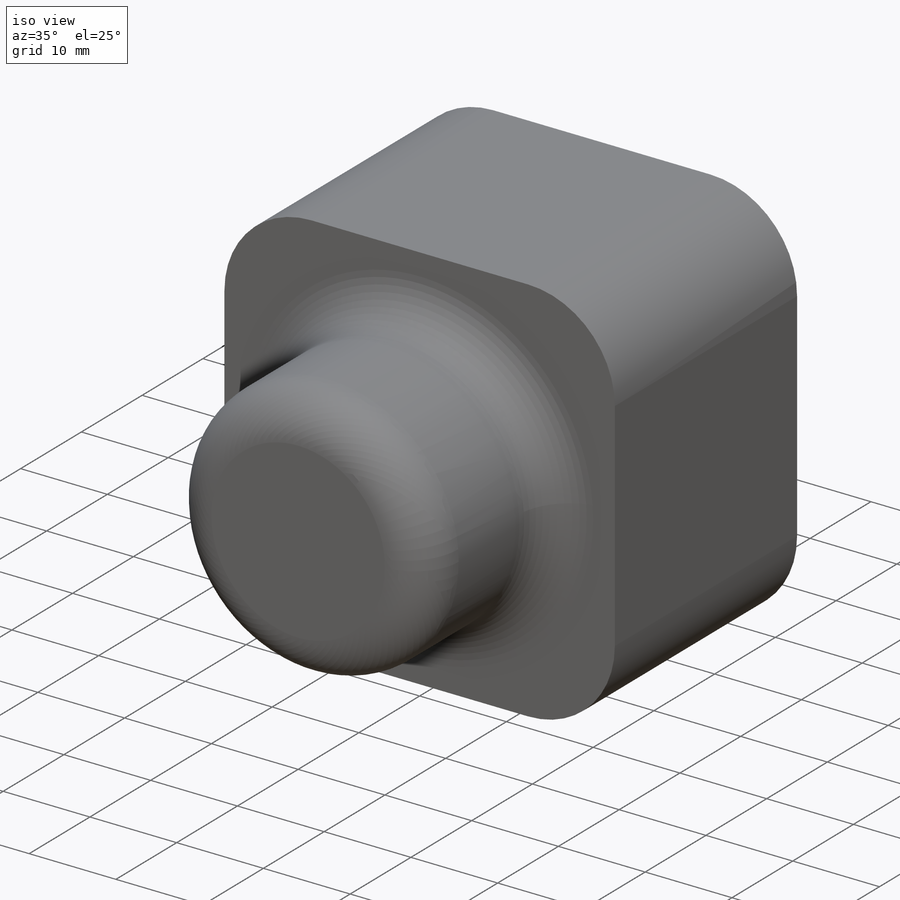
[diagram: iso view]
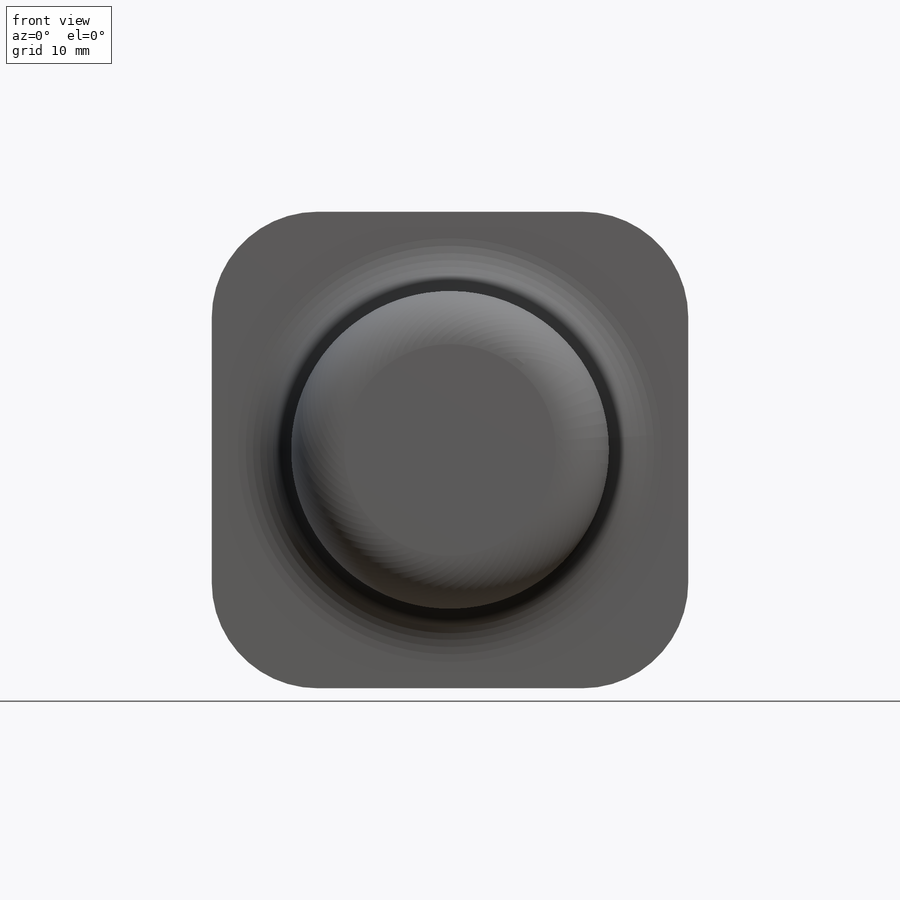
[diagram: front view]
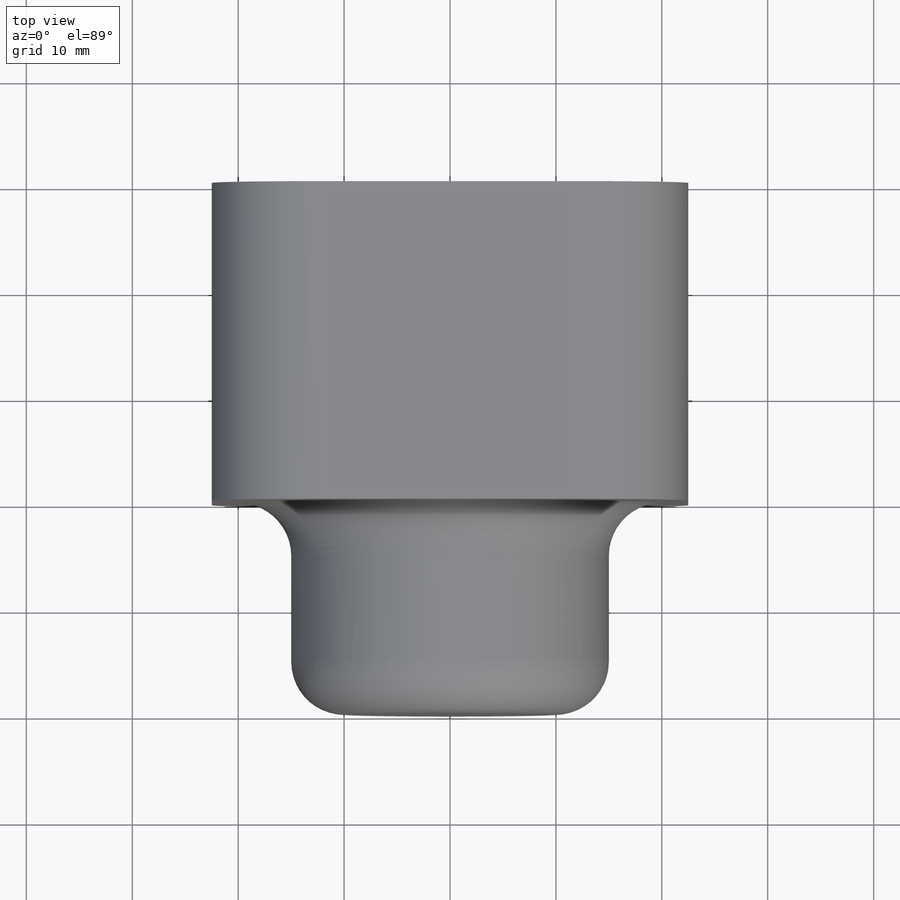
[diagram: top view]
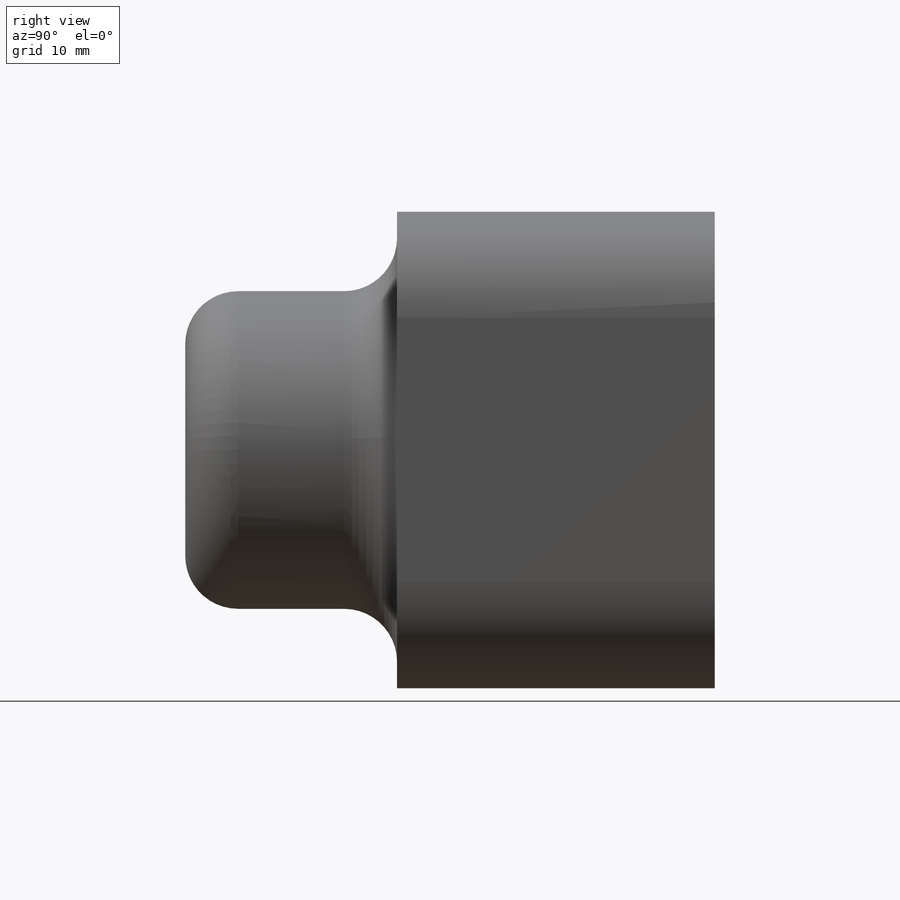
[diagram: right view]
SOLIDWORKS PART (.sldprt)
format: sldprt  version: not decoded by parser v0  size: 321,024 bytes
history: native  units: mm
features: plane x3, sketch x2, extrude x2, fillet x2, material x1, shell x1 + 1 further entry (+10 scaffold rows collapsed)
feature tree (22):
  scaffold x10  (default folders/planes/origin — collapsed)
  material  "Material <nicht festgelegt>"
  plane  "Vorderansicht"
  plane  "Draufsicht"
  plane  "Seitenansicht"
  "Tabelle"
  sketch  "Skizze1"  dims[Breite=45.0mm Höhe=45.0mm]
  extrude  "Grundkörper"  Depth=30mm Tiefe=30mm
  fillet  "VerrundungGrundkörper"  Radius=10mm
  sketch  "Skizze2"  dims[DurchmesserAufsatz=30.0mm]
  extrude  "RunderAufsatz"  Depth=20mm TiefeAufsatz=20mm
  fillet  "VerrundungAufsatz"  Radius=5mm
  shell  "Wandung"  Thickness=1mm Stärke=1mm
decode coverage: 7 of 7 modeling features carry decoded parameters; 1 rows unclassified (native names shown)
note: suppression state not decoded; provenance and decode notes live in map.json
